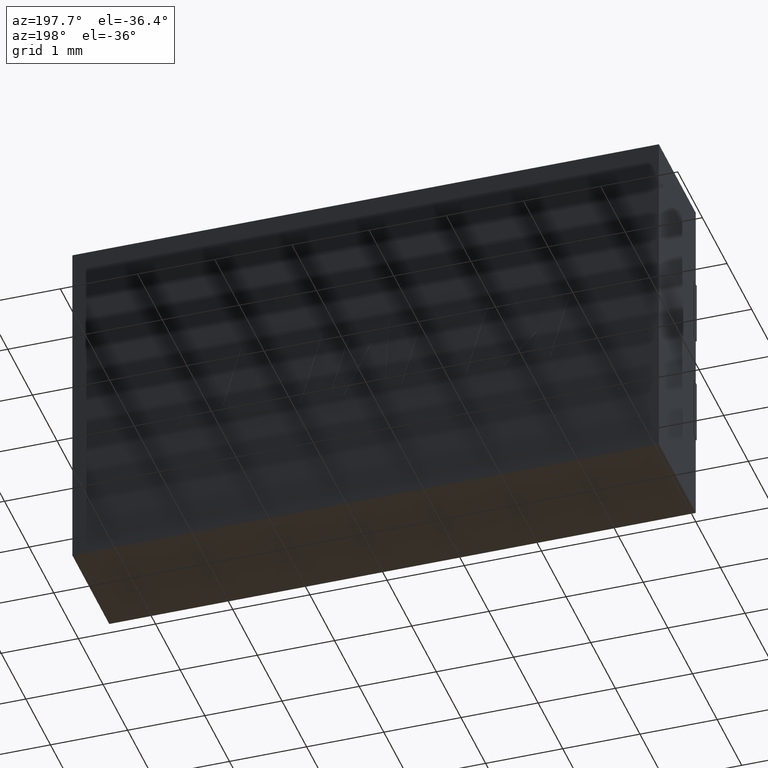
[diagram: clean part render]
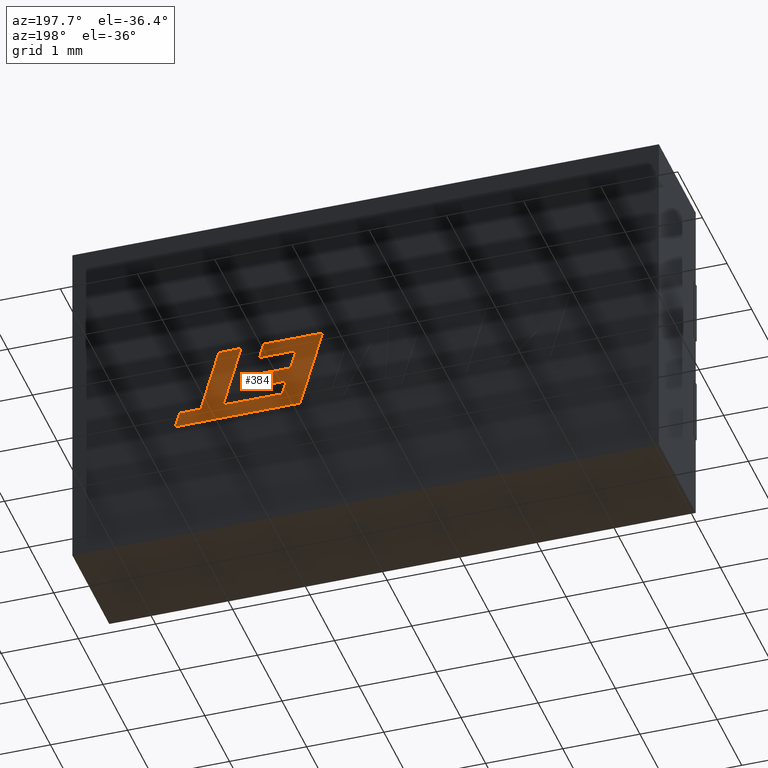
[diagram: same view with one face highlighted and labeled with its STEP entity id]
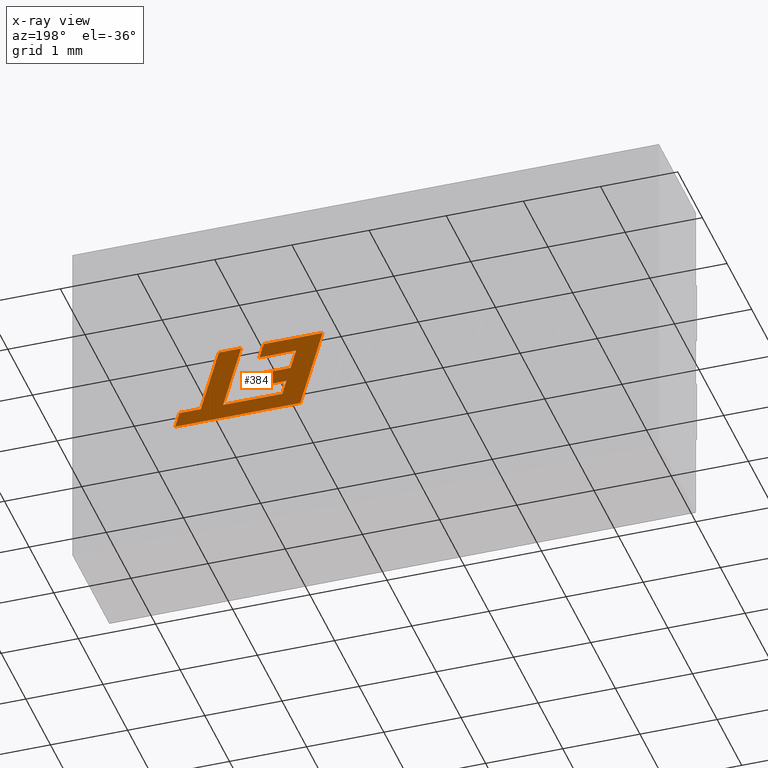
[diagram: x-ray of the same camera — body ghosted, the highlighted face saturated]
A machine part, auxiliary view. The second image highlights one B-rep face of the part: STEP entity #384.
The next image is the same camera in x-ray: the body ghosted, the highlighted face saturated — about 0% of this face is hidden behind the body in this view.
In plain terms, the highlighted planar face has unit normal (-0, 1, 0).
Its self-contained STEP definition (entity closure, byte-faithful):
#8 = ORIENTED_EDGE ( 'NONE', *, *, #269, .T. ) ;
#15 = LINE ( 'NONE', #1472, #2792 ) ;
#86 = VERTEX_POINT ( 'NONE', #2247 ) ;
#90 = VERTEX_POINT ( 'NONE', #1762 ) ;
#101 = CARTESIAN_POINT ( 'NONE',  ( 4.768511264023812757, 1.510000000000000009, -2.368402382846769960 ) ) ;
#104 = LINE ( 'NONE', #2156, #1520 ) ;
#112 = CARTESIAN_POINT ( 'NONE',  ( 5.254289916482666634, 1.510000000000000009, -2.554727265646736800 ) ) ;
#144 = CARTESIAN_POINT ( 'NONE',  ( 4.821679511326750323, 1.510000000000000009, -2.554727265646736800 ) ) ;
#155 = LINE ( 'NONE', #2032, #788 ) ;
#238 = ORIENTED_EDGE ( 'NONE', *, *, #708, .T. ) ;
#242 = ORIENTED_EDGE ( 'NONE', *, *, #1915, .T. ) ;
#244 = CARTESIAN_POINT ( 'NONE',  ( 5.931757479918957188, 1.510000000000000009, -2.739504243169387898 ) ) ;
#266 = DIRECTION ( 'NONE',  ( -1.000000000000000000, 0.000000000000000000, 4.985245021168687383E-16 ) ) ;
#269 = EDGE_CURVE ( 'NONE', #1662, #2066, #501, .T. ) ;
#277 = LINE ( 'NONE', #244, #1138 ) ;
#300 = ORIENTED_EDGE ( 'NONE', *, *, #1317, .T. ) ;
#370 = ORIENTED_EDGE ( 'NONE', *, *, #469, .T. ) ;
#384 = ADVANCED_FACE ( 'NONE', ( #1699 ), #2419, .T. ) ;
#469 = EDGE_CURVE ( 'NONE', #2405, #1848, #2587, .T. ) ;
#470 = CARTESIAN_POINT ( 'NONE',  ( 5.171524494271332983, 1.510000000000000009, -2.117893071445280828 ) ) ;
#480 = ORIENTED_EDGE ( 'NONE', *, *, #691, .T. ) ;
#501 = LINE ( 'NONE', #1374, #1652 ) ;
#529 = CARTESIAN_POINT ( 'NONE',  ( 4.645420611357524265, 1.510000000000000009, -2.934144902229014473 ) ) ;
#576 = VERTEX_POINT ( 'NONE', #1695 ) ;
#581 = LINE ( 'NONE', #1243, #1808 ) ;
#622 = ORIENTED_EDGE ( 'NONE', *, *, #1071, .T. ) ;
#668 = EDGE_CURVE ( 'NONE', #90, #1942, #155, .T. ) ;
#683 = CARTESIAN_POINT ( 'NONE',  ( 5.338195577826727600, 1.510000000000000009, -2.740929542087914061 ) ) ;
#691 = EDGE_CURVE ( 'NONE', #1423, #2502, #1544, .T. ) ;
#708 = EDGE_CURVE ( 'NONE', #2396, #1662, #2931, .T. ) ;
#773 = VERTEX_POINT ( 'NONE', #2281 ) ;
#788 = VECTOR ( 'NONE', #1798, 999.9999999999998863 ) ;
#860 = CARTESIAN_POINT ( 'NONE',  ( 4.768511264023812757, 1.510000000000000009, -2.368402382846769960 ) ) ;
#869 = CARTESIAN_POINT ( 'NONE',  ( 5.644662431183333773, 1.510000000000000009, -2.739504243171901443 ) ) ;
#882 = EDGE_CURVE ( 'NONE', #2066, #1491, #15, .T. ) ;
#960 = ORIENTED_EDGE ( 'NONE', *, *, #668, .T. ) ;
#1016 = ORIENTED_EDGE ( 'NONE', *, *, #1190, .T. ) ;
#1019 = DIRECTION ( 'NONE',  ( -1.000000000000000000, 0.000000000000000000, 0.000000000000000000 ) ) ;
#1064 = DIRECTION ( 'NONE',  ( -0.2764273280489766837, 0.000000000000000000, 0.9610348236706635072 ) ) ;
#1071 = EDGE_CURVE ( 'NONE', #1491, #2656, #2516, .T. ) ;
#1136 = VECTOR ( 'NONE', #1644, 1000.000000000000000 ) ;
#1138 = VECTOR ( 'NONE', #1156, 1000.000000000000114 ) ;
#1140 = CARTESIAN_POINT ( 'NONE',  ( 5.171524494271332983, 1.510000000000000009, -2.117893071445280828 ) ) ;
#1148 = EDGE_CURVE ( 'NONE', #1375, #90, #1432, .T. ) ;
#1149 = VERTEX_POINT ( 'NONE', #2758 ) ;
#1156 = DIRECTION ( 'NONE',  ( 0.9999999968487351953, 0.000000000000000000, 7.938847109813095698E-05 ) ) ;
#1190 = EDGE_CURVE ( 'NONE', #773, #576, #104, .T. ) ;
#1230 = EDGE_CURVE ( 'NONE', #1848, #773, #277, .T. ) ;
#1243 = CARTESIAN_POINT ( 'NONE',  ( 5.201060366000539226, 1.510000000000000009, -2.368402382846769960 ) ) ;
#1253 = DIRECTION ( 'NONE',  ( -0.000000000000000000, 1.000000000000000000, 0.000000000000000000 ) ) ;
#1311 = CARTESIAN_POINT ( 'NONE',  ( 5.644662431183333773, 1.510000000000000009, -2.739504243171901443 ) ) ;
#1317 = EDGE_CURVE ( 'NONE', #1149, #86, #581, .T. ) ;
#1354 = DIRECTION ( 'NONE',  ( -0.2763173343570114460, 0.000000000000000000, 0.9610664548998866241 ) ) ;
#1362 = VERTEX_POINT ( 'NONE', #101 ) ;
#1374 = CARTESIAN_POINT ( 'NONE',  ( 4.355462703344173292, 1.510000000000000009, -1.926069293473886113 ) ) ;
#1375 = VERTEX_POINT ( 'NONE', #144 ) ;
#1423 = VERTEX_POINT ( 'NONE', #869 ) ;
#1429 = CARTESIAN_POINT ( 'NONE',  ( 5.697953284844545330, 1.510000000000000009, -1.926069293473886557 ) ) ;
#1432 = LINE ( 'NONE', #2773, #2565 ) ;
#1462 = DIRECTION ( 'NONE',  ( 0.2762033010287931467, 0.000000000000000000, -0.9610992334305537010 ) ) ;
#1472 = CARTESIAN_POINT ( 'NONE',  ( 5.117093401477458947, 1.510000000000000009, -1.926069293473886113 ) ) ;
#1487 = CARTESIAN_POINT ( 'NONE',  ( 0.000000000000000000, 1.510000000000000009, 0.000000000000000000 ) ) ;
#1491 = VERTEX_POINT ( 'NONE', #1140 ) ;
#1520 = VECTOR ( 'NONE', #1462, 1000.000000000000114 ) ;
#1544 = LINE ( 'NONE', #1311, #2840 ) ;
#1619 = ORIENTED_EDGE ( 'NONE', *, *, #2454, .T. ) ;
#1644 = DIRECTION ( 'NONE',  ( 1.000000000000000000, 0.000000000000000000, 0.000000000000000000 ) ) ;
#1652 = VECTOR ( 'NONE', #1837, 1000.000000000000000 ) ;
#1657 = ORIENTED_EDGE ( 'NONE', *, *, #1930, .T. ) ;
#1662 = VERTEX_POINT ( 'NONE', #2398 ) ;
#1672 = ORIENTED_EDGE ( 'NONE', *, *, #1148, .T. ) ;
#1695 = CARTESIAN_POINT ( 'NONE',  ( 6.263701935353370942, 1.510000000000000009, -2.934144902229014917 ) ) ;
#1699 = FACE_OUTER_BOUND ( 'NONE', #2385, .T. ) ;
#1711 = DIRECTION ( 'NONE',  ( 0.2746918797667241008, 0.000000000000000000, -0.9615323037684296859 ) ) ;
#1731 = CARTESIAN_POINT ( 'NONE',  ( 5.410790802611302297, 1.510000000000000009, -1.926069293473886557 ) ) ;
#1762 = CARTESIAN_POINT ( 'NONE',  ( 4.876239340797058119, 1.510000000000000009, -2.742229169486867235 ) ) ;
#1765 = ORIENTED_EDGE ( 'NONE', *, *, #2450, .T. ) ;
#1788 = VECTOR ( 'NONE', #2286, 1000.000000000000000 ) ;
#1794 = VECTOR ( 'NONE', #1064, 1000.000000000000227 ) ;
#1798 = DIRECTION ( 'NONE',  ( 0.9999960426590096541, 0.000000000000000000, 0.002813301676022254057 ) ) ;
#1808 = VECTOR ( 'NONE', #1711, 1000.000000000000000 ) ;
#1815 = CARTESIAN_POINT ( 'NONE',  ( 4.696994975192277266, 1.510000000000000009, -2.117893071445280828 ) ) ;
#1837 = DIRECTION ( 'NONE',  ( 1.000000000000000000, 0.000000000000000000, 0.000000000000000000 ) ) ;
#1848 = VERTEX_POINT ( 'NONE', #2551 ) ;
#1862 = DIRECTION ( 'NONE',  ( 0.2793947940814917597, 0.000000000000000000, -0.9601763114346035799 ) ) ;
#1883 = DIRECTION ( 'NONE',  ( 0.2729786930695563552, 0.000000000000000000, -0.9620200793798624472 ) ) ;
#1915 = EDGE_CURVE ( 'NONE', #576, #2396, #2947, .T. ) ;
#1930 = EDGE_CURVE ( 'NONE', #2502, #2405, #2503, .T. ) ;
#1942 = VERTEX_POINT ( 'NONE', #683 ) ;
#1986 = CARTESIAN_POINT ( 'NONE',  ( 5.117093401477458947, 1.510000000000000009, -1.926069293473886113 ) ) ;
#1993 = VECTOR ( 'NONE', #1996, 999.9999999999998863 ) ;
#1996 = DIRECTION ( 'NONE',  ( 0.2745159998572682669, 0.000000000000000000, -0.9615825319869140131 ) ) ;
#2007 = LINE ( 'NONE', #1815, #1993 ) ;
#2032 = CARTESIAN_POINT ( 'NONE',  ( 4.876239340797058119, 1.510000000000000009, -2.742229169486867235 ) ) ;
#2037 = EDGE_CURVE ( 'NONE', #1942, #1423, #2913, .T. ) ;
#2045 = ORIENTED_EDGE ( 'NONE', *, *, #2195, .T. ) ;
#2066 = VERTEX_POINT ( 'NONE', #1986 ) ;
#2140 = CARTESIAN_POINT ( 'NONE',  ( 4.696994975192277266, 1.510000000000000009, -2.117893071445280828 ) ) ;
#2156 = CARTESIAN_POINT ( 'NONE',  ( 6.207759278584224383, 1.510000000000000009, -2.739482331808502646 ) ) ;
#2161 = LINE ( 'NONE', #112, #2279 ) ;
#2195 = EDGE_CURVE ( 'NONE', #2656, #1362, #2007, .T. ) ;
#2226 = AXIS2_PLACEMENT_3D ( 'NONE', #1487, #1253, #2615 ) ;
#2230 = CARTESIAN_POINT ( 'NONE',  ( 5.338195577826727600, 1.510000000000000009, -2.740929542087914061 ) ) ;
#2237 = VECTOR ( 'NONE', #2472, 1000.000000000000227 ) ;
#2243 = CARTESIAN_POINT ( 'NONE',  ( 4.645420611357524265, 1.510000000000000009, -2.934144902229014473 ) ) ;
#2247 = CARTESIAN_POINT ( 'NONE',  ( 5.254289916482666634, 1.510000000000000009, -2.554727265646736800 ) ) ;
#2263 = DIRECTION ( 'NONE',  ( 1.000000000000000000, 0.000000000000000000, 0.000000000000000000 ) ) ;
#2276 = ORIENTED_EDGE ( 'NONE', *, *, #1230, .T. ) ;
#2279 = VECTOR ( 'NONE', #1019, 1000.000000000000000 ) ;
#2281 = CARTESIAN_POINT ( 'NONE',  ( 6.207759278584224383, 1.510000000000000009, -2.739482331808502646 ) ) ;
#2286 = DIRECTION ( 'NONE',  ( 0.2762437428917421944, 0.000000000000000000, -0.9610876102172793978 ) ) ;
#2335 = CARTESIAN_POINT ( 'NONE',  ( 6.263701935353370942, 1.510000000000000009, -2.934144902229014917 ) ) ;
#2385 = EDGE_LOOP ( 'NONE', ( #960, #2875, #480, #1657, #370, #2276, #1016, #242, #238, #8, #2616, #622, #2045, #1619, #300, #1765, #1672 ) ) ;
#2396 = VERTEX_POINT ( 'NONE', #529 ) ;
#2398 = CARTESIAN_POINT ( 'NONE',  ( 4.355462703344173292, 1.510000000000000009, -1.926069293473886113 ) ) ;
#2405 = VERTEX_POINT ( 'NONE', #2626 ) ;
#2419 = PLANE ( 'NONE',  #2226 ) ;
#2450 = EDGE_CURVE ( 'NONE', #86, #1375, #2161, .T. ) ;
#2454 = EDGE_CURVE ( 'NONE', #1362, #1149, #2871, .T. ) ;
#2472 = DIRECTION ( 'NONE',  ( 0.9999891854650020395, 0.000000000000000000, 0.004650693823678666954 ) ) ;
#2473 = VECTOR ( 'NONE', #2872, 1000.000000000000000 ) ;
#2502 = VERTEX_POINT ( 'NONE', #1731 ) ;
#2503 = LINE ( 'NONE', #2761, #1136 ) ;
#2516 = LINE ( 'NONE', #470, #2473 ) ;
#2551 = CARTESIAN_POINT ( 'NONE',  ( 5.931757479918957188, 1.510000000000000009, -2.739504243169387898 ) ) ;
#2565 = VECTOR ( 'NONE', #1862, 1000.000000000000000 ) ;
#2587 = LINE ( 'NONE', #1429, #1788 ) ;
#2615 = DIRECTION ( 'NONE',  ( 0.000000000000000000, -0.000000000000000000, 1.000000000000000000 ) ) ;
#2616 = ORIENTED_EDGE ( 'NONE', *, *, #882, .T. ) ;
#2622 = VECTOR ( 'NONE', #266, 1000.000000000000000 ) ;
#2626 = CARTESIAN_POINT ( 'NONE',  ( 5.697953284844545330, 1.510000000000000009, -1.926069293473886557 ) ) ;
#2656 = VERTEX_POINT ( 'NONE', #2140 ) ;
#2758 = CARTESIAN_POINT ( 'NONE',  ( 5.201060366000539226, 1.510000000000000009, -2.368402382846769960 ) ) ;
#2761 = CARTESIAN_POINT ( 'NONE',  ( 5.410790802611302297, 1.510000000000000009, -1.926069293473886557 ) ) ;
#2773 = CARTESIAN_POINT ( 'NONE',  ( 4.821679511326750323, 1.510000000000000009, -2.554727265646736800 ) ) ;
#2792 = VECTOR ( 'NONE', #1883, 1000.000000000000114 ) ;
#2840 = VECTOR ( 'NONE', #1354, 999.9999999999998863 ) ;
#2871 = LINE ( 'NONE', #860, #2948 ) ;
#2872 = DIRECTION ( 'NONE',  ( -1.000000000000000000, 0.000000000000000000, 0.000000000000000000 ) ) ;
#2875 = ORIENTED_EDGE ( 'NONE', *, *, #2037, .T. ) ;
#2913 = LINE ( 'NONE', #2230, #2237 ) ;
#2931 = LINE ( 'NONE', #2243, #1794 ) ;
#2947 = LINE ( 'NONE', #2335, #2622 ) ;
#2948 = VECTOR ( 'NONE', #2263, 1000.000000000000000 ) ;